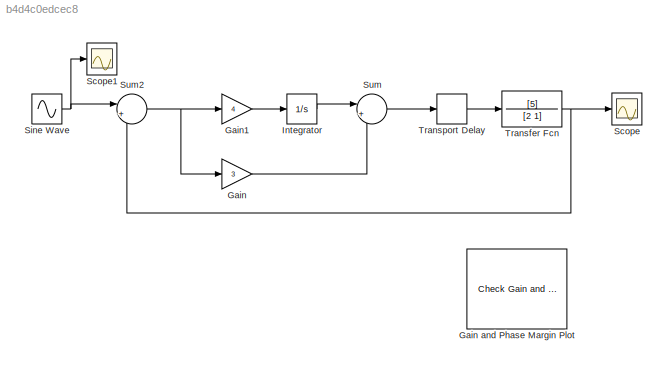
MODEL slx_b4d4c0edcec8
KIND model
BLOCK [Gain] Gain
  Gain = 3
  OutDataTypeStr = Inherit: Inherit via internal rule
  ParamDataTypeStr = Inherit: Inherit via internal rule
  SaturateOnIntegerOverflow = off
BLOCK [Reference] Gain and Phase Margin Plot  REF=slctrlblks/Model Verification/Check Gain and Phase Margins
  EnableMargins = off
  FeedbackSign = -1
  FrequencyUnits = rad/s
  GainMargin = []
  InstantiateOnLoad = on
  LaunchViewOnOpen = off
  LinearizationIOs = {'/Transfer Fcn', 1, 'out', 'on', '';'/Sum', 1, 'in', 'on', ''}
  LinearizeAt = SnapshotTimes
  MagnitudeUnits = dB
  OpenViewOnLoad = off
  PhaseMargin = []
  PhaseUnits = deg
  PlotType = bode
  Ports = []
  PreWarpFreq = 10
  RateConversionMethod = zoh
  SampleTime = auto
  SaveName = sys
  SaveOperatingPoints = off
  SaveToWorkspace = off
  SnapshotTimes = [0]
  SourceBlock = slctrlblks/Model Verification/Check Gain and Phase Margins
  SourceType = Checks_Margins
  TimeUnits = seconds
  TriggerType = rising
  UseBusSignalLabels = off
  UseExactDelayModel = off
  UseFullBlockNameLabels = off
  ViewDlgPos = [100 106 1027 484]
  ZeroCross = on
  enabled = on
  export = off
  stopWhenAssertionFail = off
BLOCK [Gain] Gain1
  Gain = 4
  OutDataTypeStr = Inherit: Inherit via internal rule
  ParamDataTypeStr = Inherit: Inherit via internal rule
  SaturateOnIntegerOverflow = off
BLOCK [Integrator] Integrator
  Ports = [1, 1]
BLOCK [Scope] Scope
  DataFormat = StructureWithTime
  Floating = off
  NumInputPorts = 1
  Ports = [1]
  SaveName = output
  SaveToWorkspace = on
  ShowLegends = off
BLOCK [Scope] Scope1
  Floating = off
  NumInputPorts = 1
  Ports = [1]
  SaveName = input
  SaveToWorkspace = on
  ShowLegends = off
BLOCK [Sin] Sine Wave
  Amplitude = 2
  Ports = [0, 1]
  SampleTime = 0
BLOCK [Sum] Sum
  IconShape = round
  InputSameDT = off
  Inputs = |++
  OutDataTypeStr = Inherit: Inherit via internal rule
  Ports = [2, 1]
  SaturateOnIntegerOverflow = off
BLOCK [Sum] Sum2
  IconShape = round
  InputSameDT = off
  Inputs = |+-
  OutDataTypeStr = Inherit: Inherit via internal rule
  Ports = [2, 1]
  SaturateOnIntegerOverflow = off
BLOCK [TransferFcn] Transfer Fcn
  Denominator = [2 1]
  Numerator = [5]
BLOCK [TransportDelay] Transport Delay
  DelayTime = .1
  Ports = [1, 1]
LINE Gain1:1 -> Integrator:1
LINE Gain:1 -> Sum:2
LINE Integrator:1 -> Sum:1
NET Sine Wave:1 -> Scope1:1, Sum2:1
NET Sum2:1 -> Gain1:1, Gain:1
LINE Sum:1 -> Transport Delay:1
NET Transfer Fcn:1 -> Scope:1, Sum2:2
LINE Transport Delay:1 -> Transfer Fcn:1
note: NET lines group one-source signal fan-out (src -> all destinations, sorted); 1:1 wires keep LINE
